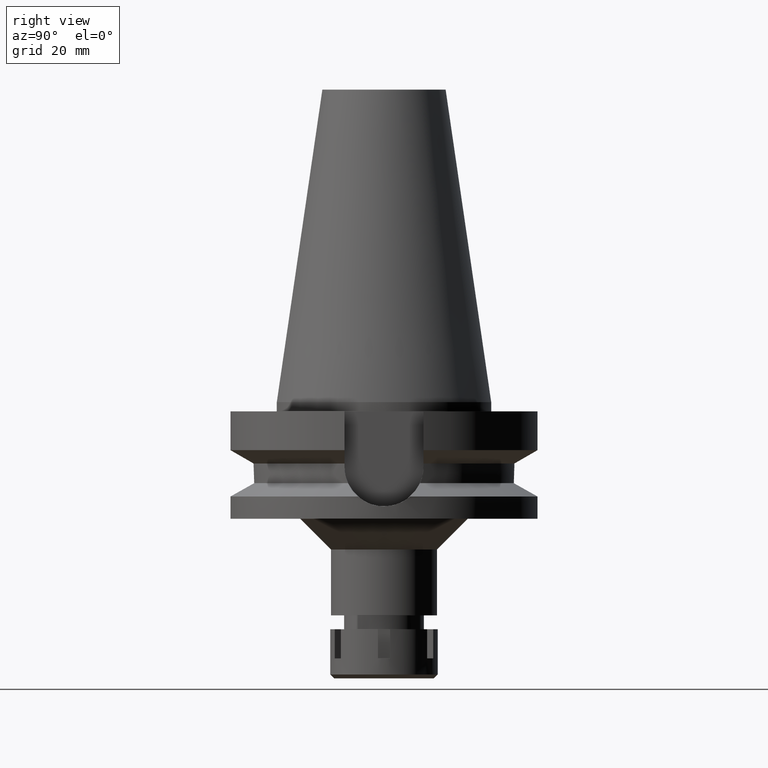
[diagram: clean part render]
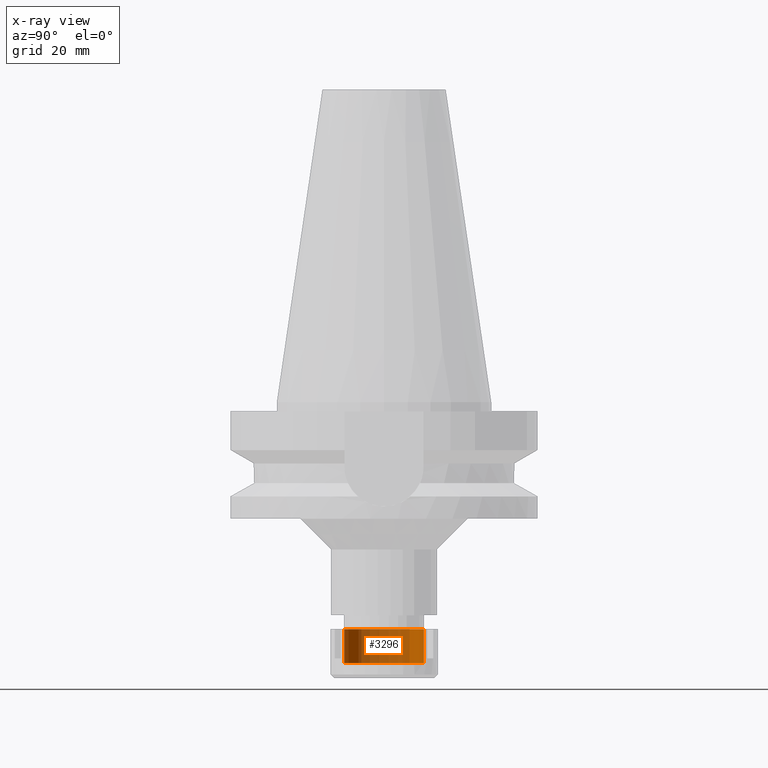
[diagram: x-ray — body ghosted, one internal face saturated and labeled with its STEP entity id]
A machine part, right view, then the same camera in x-ray: the body is ghosted and one INTERNAL B-rep face — a face not visible from any outside direction — is saturated and labeled: STEP entity #3296.
In plain terms, the highlighted cylindrical surface (partial cylindrical patch) has radius 13 mm, axis along (0, 0, -1).
Its self-contained STEP definition (entity closure, byte-faithful):
#213 = CYLINDRICAL_SURFACE ( 'NONE', #1891, 13.00000000000000000 ) ;
#290 = DIRECTION ( 'NONE',  ( 0.0000000000000000000, 1.000000000000000000, 0.0000000000000000000 ) ) ;
#400 = ORIENTED_EDGE ( 'NONE', *, *, #3333, .T. ) ;
#416 = LINE ( 'NONE', #1512, #3392 ) ;
#430 = ORIENTED_EDGE ( 'NONE', *, *, #1966, .F. ) ;
#581 = CARTESIAN_POINT ( 'NONE',  ( 0.0000000000000000000, -13.00000000000000000, -11.00000000000000000 ) ) ;
#653 = DIRECTION ( 'NONE',  ( 0.0000000000000000000, 0.0000000000000000000, -1.000000000000000000 ) ) ;
#777 = ORIENTED_EDGE ( 'NONE', *, *, #1680, .T. ) ;
#931 = ORIENTED_EDGE ( 'NONE', *, *, #2535, .T. ) ;
#1101 = EDGE_LOOP ( 'NONE', ( #931, #430, #400, #777 ) ) ;
#1178 = DIRECTION ( 'NONE',  ( 0.0000000000000000000, 0.0000000000000000000, 1.000000000000000000 ) ) ;
#1299 = CARTESIAN_POINT ( 'NONE',  ( 0.0000000000000000000, 0.0000000000000000000, 0.0000000000000000000 ) ) ;
#1512 = CARTESIAN_POINT ( 'NONE',  ( 0.0000000000000000000, -13.00000000000000000, -11.00000000000000000 ) ) ;
#1515 = VERTEX_POINT ( 'NONE', #1837 ) ;
#1552 = DIRECTION ( 'NONE',  ( 0.0000000000000000000, 0.0000000000000000000, 1.000000000000000000 ) ) ;
#1593 = CARTESIAN_POINT ( 'NONE',  ( 0.0000000000000000000, 13.00000000000000000, 0.0000000000000000000 ) ) ;
#1680 = EDGE_CURVE ( 'NONE', #2316, #2982, #2389, .T. ) ;
#1735 = CIRCLE ( 'NONE', #1854, 13.00000000000000000 ) ;
#1837 = CARTESIAN_POINT ( 'NONE',  ( 0.0000000000000000000, -13.00000000000000000, 0.0000000000000000000 ) ) ;
#1854 = AXIS2_PLACEMENT_3D ( 'NONE', #2854, #1178, #290 ) ;
#1891 = AXIS2_PLACEMENT_3D ( 'NONE', #1299, #3413, #2622 ) ;
#1966 = EDGE_CURVE ( 'NONE', #2577, #1515, #416, .T. ) ;
#2026 = DIRECTION ( 'NONE',  ( 0.0000000000000000000, -1.000000000000000000, 0.0000000000000000000 ) ) ;
#2033 = CARTESIAN_POINT ( 'NONE',  ( 0.0000000000000000000, 13.00000000000000000, -11.00000000000000000 ) ) ;
#2295 = FACE_OUTER_BOUND ( 'NONE', #1101, .T. ) ;
#2316 = VERTEX_POINT ( 'NONE', #2033 ) ;
#2389 = LINE ( 'NONE', #2881, #2811 ) ;
#2431 = CARTESIAN_POINT ( 'NONE',  ( 0.0000000000000000000, 0.0000000000000000000, -11.00000000000000000 ) ) ;
#2535 = EDGE_CURVE ( 'NONE', #2982, #1515, #1735, .T. ) ;
#2577 = VERTEX_POINT ( 'NONE', #581 ) ;
#2622 = DIRECTION ( 'NONE',  ( 0.0000000000000000000, -1.000000000000000000, 0.0000000000000000000 ) ) ;
#2811 = VECTOR ( 'NONE', #2903, 1000.000000000000000 ) ;
#2854 = CARTESIAN_POINT ( 'NONE',  ( 0.0000000000000000000, 0.0000000000000000000, 0.0000000000000000000 ) ) ;
#2881 = CARTESIAN_POINT ( 'NONE',  ( 0.0000000000000000000, 13.00000000000000000, -11.00000000000000000 ) ) ;
#2903 = DIRECTION ( 'NONE',  ( 0.0000000000000000000, 0.0000000000000000000, 1.000000000000000000 ) ) ;
#2982 = VERTEX_POINT ( 'NONE', #1593 ) ;
#3296 = ADVANCED_FACE ( 'NONE', ( #2295 ), #213, .F. ) ;
#3333 = EDGE_CURVE ( 'NONE', #2577, #2316, #3527, .T. ) ;
#3392 = VECTOR ( 'NONE', #1552, 1000.000000000000000 ) ;
#3413 = DIRECTION ( 'NONE',  ( 0.0000000000000000000, 0.0000000000000000000, -1.000000000000000000 ) ) ;
#3527 = CIRCLE ( 'NONE', #3582, 13.00000000000000000 ) ;
#3582 = AXIS2_PLACEMENT_3D ( 'NONE', #2431, #653, #2026 ) ;